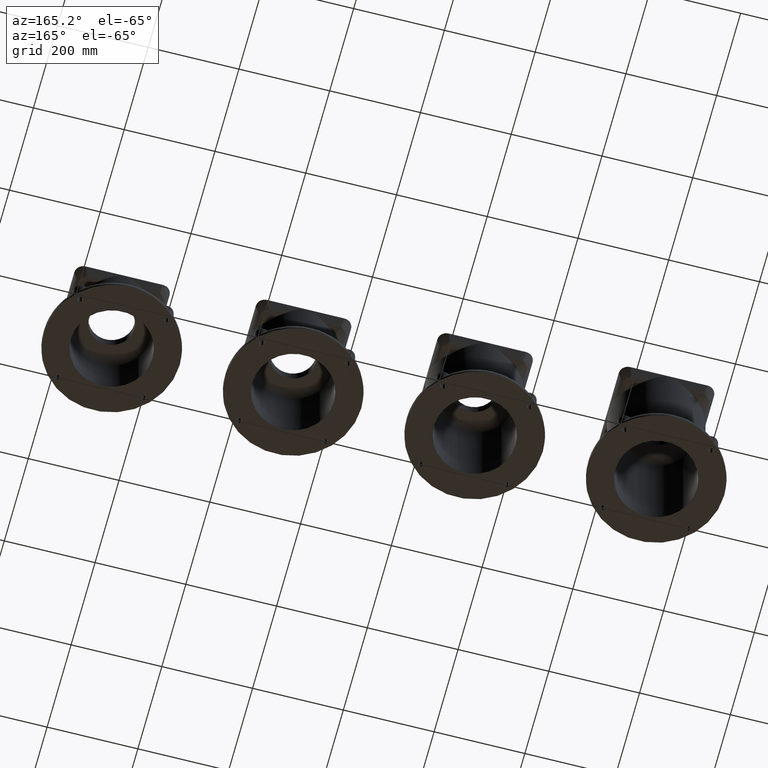
[diagram: clean part render]
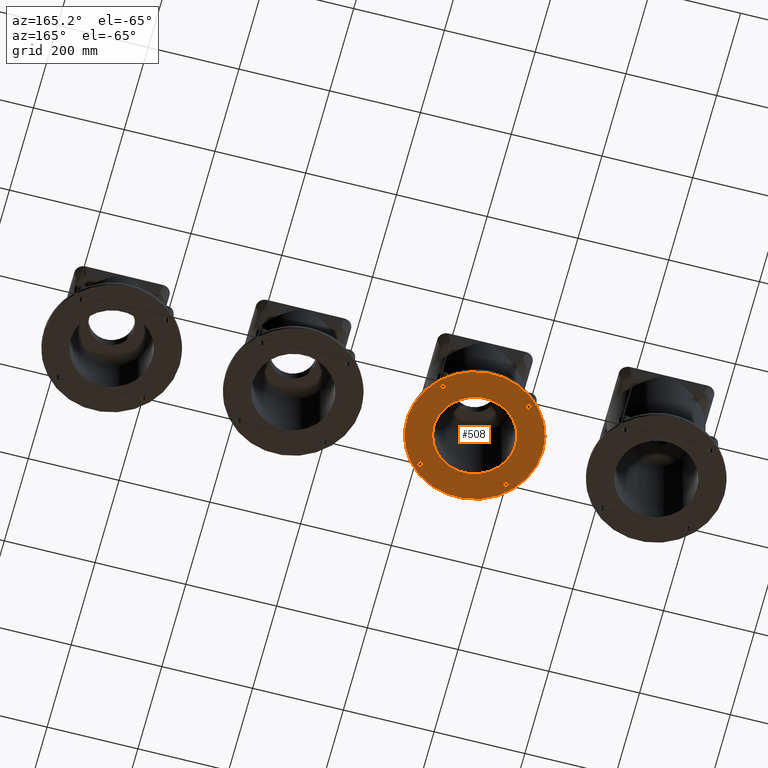
[diagram: same view with one face highlighted and labeled with its STEP entity id]
A machine part, auxiliary view. The second image highlights one B-rep face of the part: STEP entity #508.
In plain terms, the highlighted planar face has unit normal (-0, 0, -1).
Its self-contained STEP definition (entity closure, byte-faithful):
#508=ADVANCED_FACE('',(#1129,#1130,#1131,#1132,#1133,#1134),#1135,.T.);
#1129=FACE_BOUND('',#4028,.T.);
#1130=FACE_BOUND('',#4029,.T.);
#1131=FACE_BOUND('',#4030,.T.);
#1132=FACE_BOUND('',#4031,.T.);
#1133=FACE_BOUND('',#4032,.T.);
#1134=FACE_OUTER_BOUND('',#4033,.T.);
#1135=PLANE('',#4034);
#4028=EDGE_LOOP('',(#8445));
#4029=EDGE_LOOP('',(#8446));
#4030=EDGE_LOOP('',(#8447));
#4031=EDGE_LOOP('',(#8448));
#4032=EDGE_LOOP('',(#8449));
#4033=EDGE_LOOP('',(#8450));
#4034=AXIS2_PLACEMENT_3D('',#8451,#8452,#8453);
#8445=ORIENTED_EDGE('',*,*,#10480,.T.);
#8446=ORIENTED_EDGE('',*,*,#10478,.T.);
#8447=ORIENTED_EDGE('',*,*,#10476,.T.);
#8448=ORIENTED_EDGE('',*,*,#10474,.T.);
#8449=ORIENTED_EDGE('',*,*,#10472,.F.);
#8450=ORIENTED_EDGE('',*,*,#10522,.T.);
#8451=CARTESIAN_POINT('',(0.0,0.0,85.0));
#8452=DIRECTION('',(0.0,0.0,1.0));
#8453=DIRECTION('',(1.0,0.0,0.0));
#10472=EDGE_CURVE('',#11717,#11717,#11718,.T.);
#10474=EDGE_CURVE('',#11721,#11721,#11722,.T.);
#10476=EDGE_CURVE('',#11725,#11725,#11726,.T.);
#10478=EDGE_CURVE('',#11729,#11729,#11730,.T.);
#10480=EDGE_CURVE('',#11733,#11733,#11734,.T.);
#10522=EDGE_CURVE('',#11795,#11795,#11796,.T.);
#11717=VERTEX_POINT('',#16140);
#11718=CIRCLE('',#16141,90.0);
#11721=VERTEX_POINT('',#16144);
#11722=CIRCLE('',#16145,5.5);
#11725=VERTEX_POINT('',#16148);
#11726=CIRCLE('',#16149,5.5);
#11729=VERTEX_POINT('',#16152);
#11730=CIRCLE('',#16153,5.5);
#11733=VERTEX_POINT('',#16156);
#11734=CIRCLE('',#16157,5.5);
#11795=VERTEX_POINT('',#16514);
#11796=CIRCLE('',#16515,150.0);
#16140=CARTESIAN_POINT('',(90.0,0.0,85.0));
#16141=AXIS2_PLACEMENT_3D('',#21381,#21382,#21383);
#16144=CARTESIAN_POINT('',(90.8632213824714,90.8632213824714,85.0));
#16145=AXIS2_PLACEMENT_3D('',#21387,#21388,#21389);
#16148=CARTESIAN_POINT('',(-98.6413959755237,-90.863221382471,85.0));
#16149=AXIS2_PLACEMENT_3D('',#21393,#21394,#21395);
#16152=CARTESIAN_POINT('',(-98.6413959755233,98.6413959755237,85.0));
#16153=AXIS2_PLACEMENT_3D('',#21399,#21400,#21401);
#16156=CARTESIAN_POINT('',(90.8632213824711,-90.8632213824714,85.0));
#16157=AXIS2_PLACEMENT_3D('',#21405,#21406,#21407);
#16514=CARTESIAN_POINT('',(150.0,0.0,85.0));
#16515=AXIS2_PLACEMENT_3D('',#21436,#21437,#21438);
#21381=CARTESIAN_POINT('',(0.0,0.0,85.0));
#21382=DIRECTION('',(0.0,0.0,1.0));
#21383=DIRECTION('',(1.0,0.0,0.0));
#21387=CARTESIAN_POINT('',(94.7523086789974,94.7523086789974,85.0));
#21388=DIRECTION('',(4.32978028117747E-017,4.32978028117746E-017,-1.0));
#21389=DIRECTION('',(-0.707106781186549,-0.707106781186546,-6.12323399573677E-017));
#21393=CARTESIAN_POINT('',(-94.7523086789977,-94.752308678997,85.0));
#21394=DIRECTION('',(4.32978028117746E-017,-4.32978028117747E-017,-1.0));
#21395=DIRECTION('',(-0.707106781186546,0.707106781186549,-6.12323399573677E-017));
#21399=CARTESIAN_POINT('',(-94.7523086789973,94.7523086789977,85.0));
#21400=DIRECTION('',(4.32978028117746E-017,-4.32978028117747E-017,-1.0));
#21401=DIRECTION('',(-0.707106781186546,0.707106781186549,-6.12323399573677E-017));
#21405=CARTESIAN_POINT('',(94.7523086789971,-94.7523086789974,85.0));
#21406=DIRECTION('',(4.32978028117746E-017,-4.32978028117747E-017,-1.0));
#21407=DIRECTION('',(-0.707106781186546,0.707106781186549,-6.12323399573677E-017));
#21436=CARTESIAN_POINT('',(0.0,0.0,85.0));
#21437=DIRECTION('',(0.0,0.0,1.0));
#21438=DIRECTION('',(1.0,0.0,0.0));